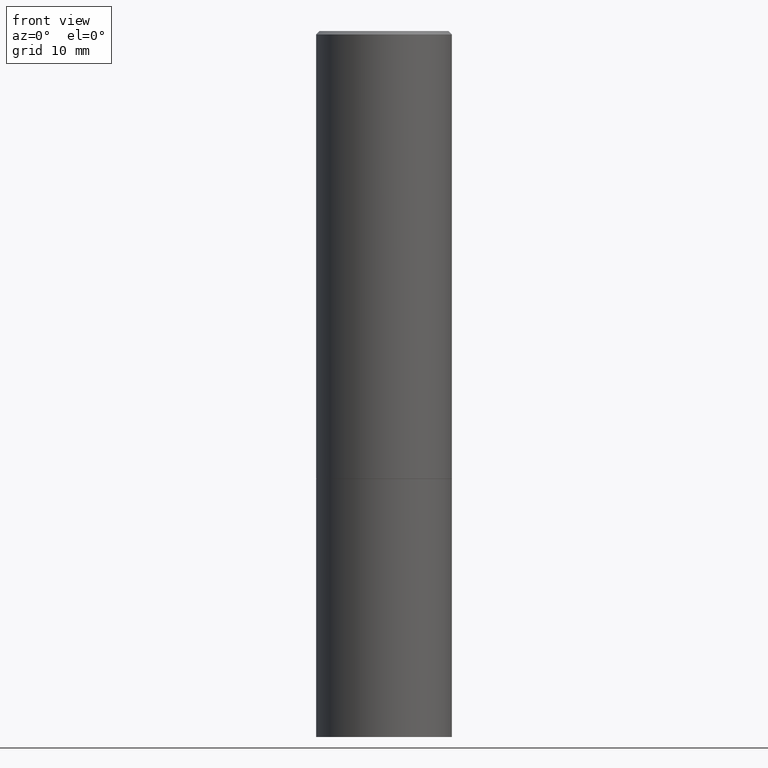
[diagram: clean part render]
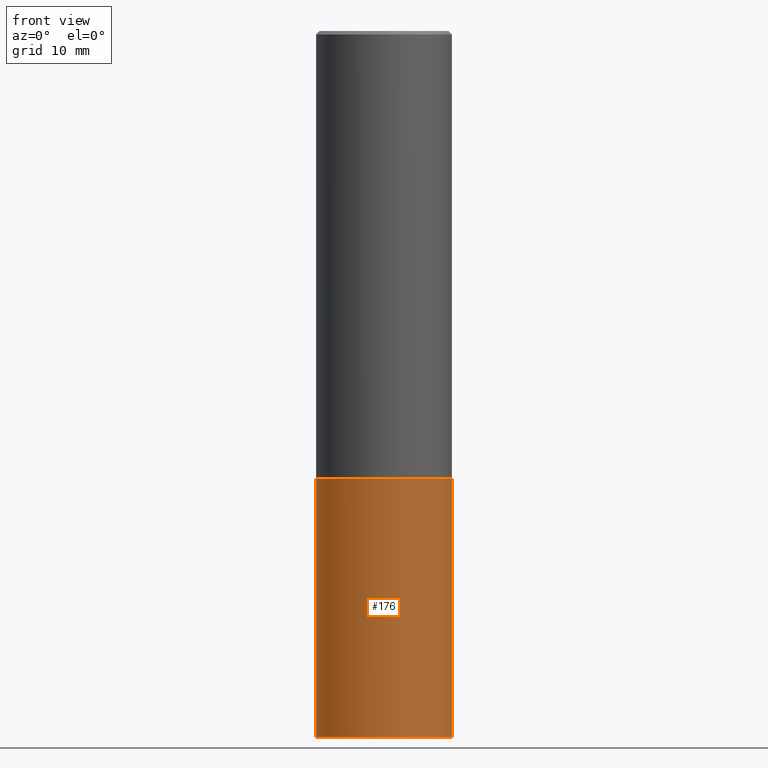
[diagram: same view with one face highlighted and labeled with its STEP entity id]
A machine part, front view. The second image highlights one B-rep face of the part: STEP entity #176.
In plain terms, the highlighted cylindrical surface (partial cylindrical patch) has radius 10 mm, axis along (-0, 0, 1).
Its self-contained STEP definition (entity closure, byte-faithful):
#1 = DIRECTION ( 'NONE',  ( 1.000000000000000000, -6.982962677686265922E-15, 4.876176775795935793E-29 ) ) ;
#3 = EDGE_CURVE ( 'NONE', #96, #55, #353, .T. ) ;
#9 = CYLINDRICAL_SURFACE ( 'NONE', #328, 0.3937000000000000499 ) ;
#12 = CARTESIAN_POINT ( 'NONE',  ( 1.001297202692504215E-28, -1.429587034189326149E-14, -4.094500000000000028 ) ) ;
#17 = EDGE_CURVE ( 'NONE', #96, #143, #222, .T. ) ;
#44 = CARTESIAN_POINT ( 'NONE',  ( -0.3937000000000000499, -8.886660975684131482E-15, -4.094500000000000028 ) ) ;
#49 = CIRCLE ( 'NONE', #197, 0.3937000000000000499 ) ;
#55 = VERTEX_POINT ( 'NONE', #134 ) ;
#69 = AXIS2_PLACEMENT_3D ( 'NONE', #12, #153, #209 ) ;
#72 = DIRECTION ( 'NONE',  ( 1.000000000000000000, -6.982962677686267499E-15, 0.000000000000000000 ) ) ;
#76 = EDGE_CURVE ( 'NONE', #143, #257, #107, .T. ) ;
#88 = VECTOR ( 'NONE', #130, 39.37007874015748143 ) ;
#96 = VERTEX_POINT ( 'NONE', #44 ) ;
#102 = DIRECTION ( 'NONE',  ( -2.445468806185136597E-29, 3.491481338843145583E-15, 1.000000000000000000 ) ) ;
#107 = LINE ( 'NONE', #137, #364 ) ;
#108 = DIRECTION ( 'NONE',  ( -2.445468806185136877E-29, 3.491481338843145188E-15, 1.000000000000000000 ) ) ;
#125 = EDGE_CURVE ( 'NONE', #55, #257, #49, .T. ) ;
#130 = DIRECTION ( 'NONE',  ( -2.445468806185136877E-29, 3.491481338843145188E-15, 1.000000000000000000 ) ) ;
#134 = CARTESIAN_POINT ( 'NONE',  ( -0.3937000000000000499, -8.886660975684131482E-15, -2.598400000000000265 ) ) ;
#137 = CARTESIAN_POINT ( 'NONE',  ( 0.3937000000000000499, -2.749192406205083217E-15, 1.919750796630860172E-29 ) ) ;
#143 = VERTEX_POINT ( 'NONE', #150 ) ;
#150 = CARTESIAN_POINT ( 'NONE',  ( 0.3937000000000000499, -1.704506274809834471E-14, -4.094500000000000028 ) ) ;
#152 = DIRECTION ( 'NONE',  ( -2.445468806185136597E-29, 3.491481338843145583E-15, 1.000000000000000000 ) ) ;
#153 = DIRECTION ( 'NONE',  ( -2.445468806185136597E-29, 3.491481338843145583E-15, 1.000000000000000000 ) ) ;
#162 = CARTESIAN_POINT ( 'NONE',  ( -0.3937000000000000499, 2.797406750687514786E-15, -1.936584745033356735E-29 ) ) ;
#164 = ORIENTED_EDGE ( 'NONE', *, *, #76, .T. ) ;
#176 = ADVANCED_FACE ( 'NONE', ( #350 ), #9, .T. ) ;
#197 = AXIS2_PLACEMENT_3D ( 'NONE', #265, #152, #72 ) ;
#201 = ORIENTED_EDGE ( 'NONE', *, *, #17, .T. ) ;
#203 = EDGE_LOOP ( 'NONE', ( #251, #201, #164, #301 ) ) ;
#209 = DIRECTION ( 'NONE',  ( 1.000000000000000000, -6.982962677686267499E-15, 0.000000000000000000 ) ) ;
#222 = CIRCLE ( 'NONE', #69, 0.3937000000000000499 ) ;
#251 = ORIENTED_EDGE ( 'NONE', *, *, #3, .F. ) ;
#257 = VERTEX_POINT ( 'NONE', #262 ) ;
#262 = CARTESIAN_POINT ( 'NONE',  ( 0.3937000000000000499, -1.182145751705511584E-14, -2.598400000000000265 ) ) ;
#265 = CARTESIAN_POINT ( 'NONE',  ( 6.354306145991459756E-29, -9.072265110850031044E-15, -2.598400000000000265 ) ) ;
#266 = CARTESIAN_POINT ( 'NONE',  ( 0.000000000000000000, 0.000000000000000000, 0.000000000000000000 ) ) ;
#301 = ORIENTED_EDGE ( 'NONE', *, *, #125, .F. ) ;
#328 = AXIS2_PLACEMENT_3D ( 'NONE', #266, #102, #1 ) ;
#350 = FACE_OUTER_BOUND ( 'NONE', #203, .T. ) ;
#353 = LINE ( 'NONE', #162, #88 ) ;
#364 = VECTOR ( 'NONE', #108, 39.37007874015748143 ) ;